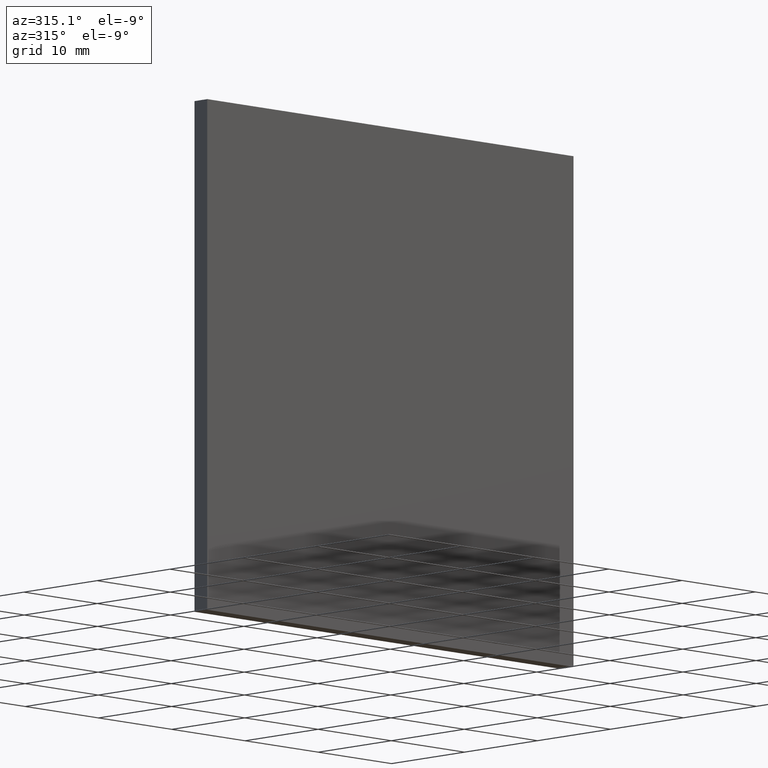
[diagram: clean part render]
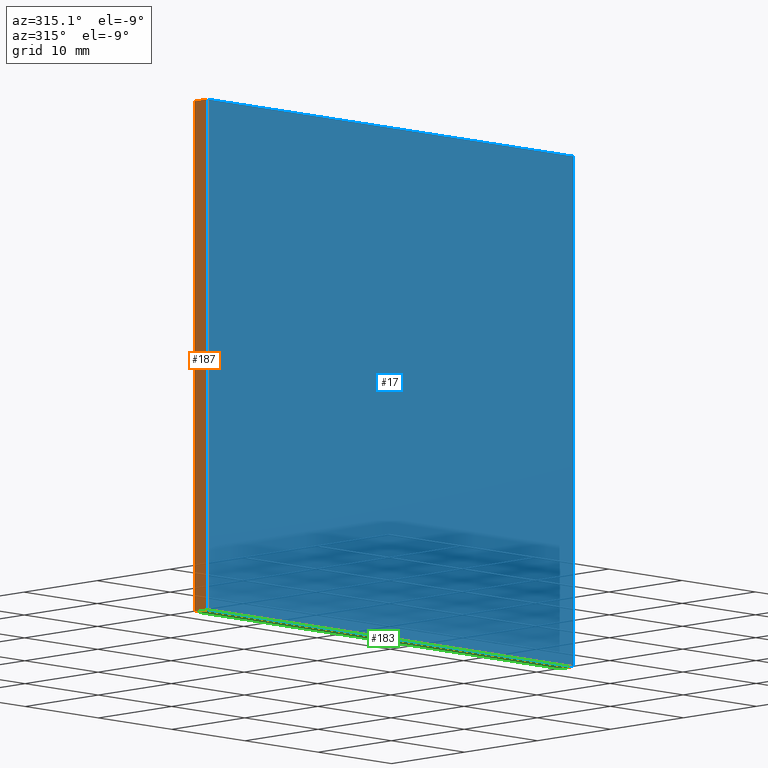
[diagram: same view with three faces highlighted in distinct colors, each labeled with its STEP entity id]
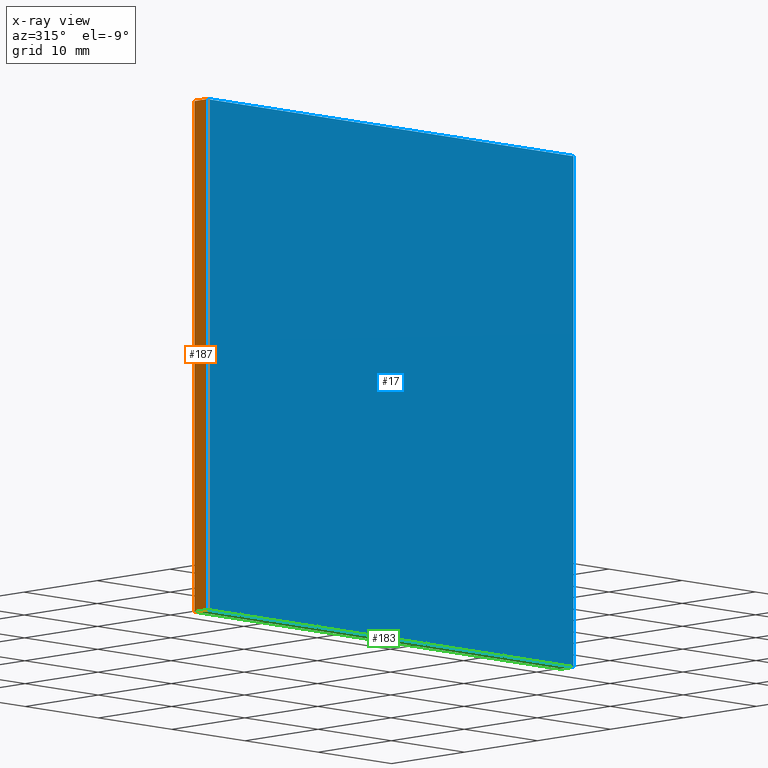
[diagram: x-ray of the same camera — body ghosted, the three highlighted faces saturated]
A machine part, auxiliary view with three faces highlighted in distinct colors.
The next image is the same camera in x-ray (body ghosted, the three faces saturated) — at least one of them is partly hidden behind the body in this view.
Their STEP definitions:

[orange] entity #187 — the highlighted planar face has unit normal (1, -0, 0).
#5 = VERTEX_POINT ( 'NONE', #94 ) ;
#14 = VERTEX_POINT ( 'NONE', #77 ) ;
#15 = VERTEX_POINT ( 'NONE', #136 ) ;
#35 = PLANE ( 'NONE',  #135 ) ;
#40 = DIRECTION ( 'NONE',  ( -0.0000000000000000000, -0.0000000000000000000, 1.000000000000000000 ) ) ;
#43 = ORIENTED_EDGE ( 'NONE', *, *, #120, .T. ) ;
#47 = CARTESIAN_POINT ( 'NONE',  ( -25.00000000000000700, 0.0000000000000000000, 25.00000000000000000 ) ) ;
#61 = FACE_OUTER_BOUND ( 'NONE', #152, .T. ) ;
#70 = ORIENTED_EDGE ( 'NONE', *, *, #93, .F. ) ;
#77 = CARTESIAN_POINT ( 'NONE',  ( -25.00000000000000700, 0.0000000000000000000, -25.00000000000000000 ) ) ;
#78 = ORIENTED_EDGE ( 'NONE', *, *, #124, .T. ) ;
#86 = VERTEX_POINT ( 'NONE', #47 ) ;
#88 = CARTESIAN_POINT ( 'NONE',  ( -25.00000000000000700, 1.740000000000000000, 25.00000000000000000 ) ) ;
#92 = CARTESIAN_POINT ( 'NONE',  ( -25.00000000000000700, 1.740000000000000000, -25.00000000000000000 ) ) ;
#93 = EDGE_CURVE ( 'NONE', #15, #5, #162, .T. ) ;
#94 = CARTESIAN_POINT ( 'NONE',  ( -25.00000000000000700, 1.740000000000000000, 25.00000000000000000 ) ) ;
#97 = DIRECTION ( 'NONE',  ( -0.0000000000000000000, -1.000000000000000000, -0.0000000000000000000 ) ) ;
#101 = ORIENTED_EDGE ( 'NONE', *, *, #104, .F. ) ;
#104 = EDGE_CURVE ( 'NONE', #5, #86, #151, .T. ) ;
#107 = VECTOR ( 'NONE', #97, 1000.000000000000000 ) ;
#108 = CARTESIAN_POINT ( 'NONE',  ( -25.00000000000000700, 1.740000000000000000, 25.00000000000000000 ) ) ;
#110 = DIRECTION ( 'NONE',  ( 1.000000000000000000, -0.0000000000000000000, 0.0000000000000000000 ) ) ;
#117 = CARTESIAN_POINT ( 'NONE',  ( -25.00000000000000700, 0.0000000000000000000, 25.00000000000000000 ) ) ;
#118 = DIRECTION ( 'NONE',  ( 0.0000000000000000000, 0.0000000000000000000, -1.000000000000000000 ) ) ;
#120 = EDGE_CURVE ( 'NONE', #14, #86, #196, .T. ) ;
#124 = EDGE_CURVE ( 'NONE', #15, #14, #137, .T. ) ;
#129 = DIRECTION ( 'NONE',  ( -0.0000000000000000000, -1.000000000000000000, -0.0000000000000000000 ) ) ;
#135 = AXIS2_PLACEMENT_3D ( 'NONE', #88, #110, #118 ) ;
#136 = CARTESIAN_POINT ( 'NONE',  ( -25.00000000000000700, 1.740000000000000000, -25.00000000000000000 ) ) ;
#137 = LINE ( 'NONE', #92, #107 ) ;
#141 = DIRECTION ( 'NONE',  ( -0.0000000000000000000, -0.0000000000000000000, 1.000000000000000000 ) ) ;
#151 = LINE ( 'NONE', #108, #164 ) ;
#152 = EDGE_LOOP ( 'NONE', ( #43, #101, #70, #78 ) ) ;
#156 = VECTOR ( 'NONE', #141, 1000.000000000000000 ) ;
#162 = LINE ( 'NONE', #172, #199 ) ;
#164 = VECTOR ( 'NONE', #129, 1000.000000000000000 ) ;
#172 = CARTESIAN_POINT ( 'NONE',  ( -25.00000000000000700, 1.740000000000000000, 25.00000000000000000 ) ) ;
#187 = ADVANCED_FACE ( 'NONE', ( #61 ), #35, .F. ) ;
#196 = LINE ( 'NONE', #117, #156 ) ;
#199 = VECTOR ( 'NONE', #40, 1000.000000000000000 ) ;

[blue] entity #17 — the highlighted planar face has unit normal (0, -1, 0).
#10 = VECTOR ( 'NONE', #140, 1000.000000000000000 ) ;
#14 = VERTEX_POINT ( 'NONE', #77 ) ;
#17 = ADVANCED_FACE ( 'NONE', ( #143 ), #100, .T. ) ;
#41 = LINE ( 'NONE', #102, #10 ) ;
#42 = EDGE_CURVE ( 'NONE', #81, #14, #41, .T. ) ;
#47 = CARTESIAN_POINT ( 'NONE',  ( -25.00000000000000700, 0.0000000000000000000, 25.00000000000000000 ) ) ;
#62 = ORIENTED_EDGE ( 'NONE', *, *, #42, .F. ) ;
#77 = CARTESIAN_POINT ( 'NONE',  ( -25.00000000000000700, 0.0000000000000000000, -25.00000000000000000 ) ) ;
#80 = EDGE_CURVE ( 'NONE', #86, #185, #126, .T. ) ;
#81 = VERTEX_POINT ( 'NONE', #186 ) ;
#86 = VERTEX_POINT ( 'NONE', #47 ) ;
#100 = PLANE ( 'NONE',  #155 ) ;
#102 = CARTESIAN_POINT ( 'NONE',  ( -25.00000000000000700, 0.0000000000000000000, -25.00000000000000000 ) ) ;
#105 = CARTESIAN_POINT ( 'NONE',  ( 24.99999999999999300, 0.0000000000000000000, 25.00000000000000000 ) ) ;
#111 = EDGE_CURVE ( 'NONE', #185, #81, #190, .T. ) ;
#112 = DIRECTION ( 'NONE',  ( 1.000000000000000000, 0.0000000000000000000, 0.0000000000000000000 ) ) ;
#114 = VECTOR ( 'NONE', #128, 1000.000000000000000 ) ;
#115 = CARTESIAN_POINT ( 'NONE',  ( 0.0000000000000000000, 0.0000000000000000000, 0.0000000000000000000 ) ) ;
#117 = CARTESIAN_POINT ( 'NONE',  ( -25.00000000000000700, 0.0000000000000000000, 25.00000000000000000 ) ) ;
#120 = EDGE_CURVE ( 'NONE', #14, #86, #196, .T. ) ;
#121 = ORIENTED_EDGE ( 'NONE', *, *, #111, .F. ) ;
#126 = LINE ( 'NONE', #127, #168 ) ;
#127 = CARTESIAN_POINT ( 'NONE',  ( -25.00000000000000700, 0.0000000000000000000, 25.00000000000000000 ) ) ;
#128 = DIRECTION ( 'NONE',  ( 0.0000000000000000000, 0.0000000000000000000, -1.000000000000000000 ) ) ;
#130 = ORIENTED_EDGE ( 'NONE', *, *, #80, .F. ) ;
#140 = DIRECTION ( 'NONE',  ( -1.000000000000000000, -0.0000000000000000000, -0.0000000000000000000 ) ) ;
#141 = DIRECTION ( 'NONE',  ( -0.0000000000000000000, -0.0000000000000000000, 1.000000000000000000 ) ) ;
#143 = FACE_OUTER_BOUND ( 'NONE', #158, .T. ) ;
#147 = ORIENTED_EDGE ( 'NONE', *, *, #120, .F. ) ;
#150 = DIRECTION ( 'NONE',  ( 0.0000000000000000000, -1.000000000000000000, 0.0000000000000000000 ) ) ;
#155 = AXIS2_PLACEMENT_3D ( 'NONE', #115, #150, #175 ) ;
#156 = VECTOR ( 'NONE', #141, 1000.000000000000000 ) ;
#158 = EDGE_LOOP ( 'NONE', ( #121, #130, #147, #62 ) ) ;
#168 = VECTOR ( 'NONE', #112, 1000.000000000000000 ) ;
#175 = DIRECTION ( 'NONE',  ( 0.0000000000000000000, -0.0000000000000000000, -1.000000000000000000 ) ) ;
#185 = VERTEX_POINT ( 'NONE', #105 ) ;
#186 = CARTESIAN_POINT ( 'NONE',  ( 24.99999999999999300, 0.0000000000000000000, -25.00000000000000000 ) ) ;
#189 = CARTESIAN_POINT ( 'NONE',  ( 24.99999999999999300, 0.0000000000000000000, 25.00000000000000000 ) ) ;
#190 = LINE ( 'NONE', #189, #114 ) ;
#196 = LINE ( 'NONE', #117, #156 ) ;

[green] entity #183 — the highlighted planar face has unit normal (0, 0, 1).
#3 = LINE ( 'NONE', #182, #83 ) ;
#4 = CARTESIAN_POINT ( 'NONE',  ( -25.00000000000000700, 1.740000000000000000, -25.00000000000000000 ) ) ;
#9 = DIRECTION ( 'NONE',  ( 0.0000000000000000000, 0.0000000000000000000, 1.000000000000000000 ) ) ;
#10 = VECTOR ( 'NONE', #140, 1000.000000000000000 ) ;
#14 = VERTEX_POINT ( 'NONE', #77 ) ;
#15 = VERTEX_POINT ( 'NONE', #136 ) ;
#32 = EDGE_CURVE ( 'NONE', #197, #15, #44, .T. ) ;
#39 = CARTESIAN_POINT ( 'NONE',  ( 24.99999999999999300, 1.740000000000000000, -25.00000000000000000 ) ) ;
#41 = LINE ( 'NONE', #102, #10 ) ;
#42 = EDGE_CURVE ( 'NONE', #81, #14, #41, .T. ) ;
#44 = LINE ( 'NONE', #4, #178 ) ;
#48 = AXIS2_PLACEMENT_3D ( 'NONE', #58, #9, #51 ) ;
#51 = DIRECTION ( 'NONE',  ( 1.000000000000000000, 0.0000000000000000000, -0.0000000000000000000 ) ) ;
#55 = ORIENTED_EDGE ( 'NONE', *, *, #124, .F. ) ;
#56 = PLANE ( 'NONE',  #48 ) ;
#57 = EDGE_CURVE ( 'NONE', #197, #81, #3, .T. ) ;
#58 = CARTESIAN_POINT ( 'NONE',  ( -25.00000000000000700, 1.740000000000000000, -25.00000000000000000 ) ) ;
#60 = ORIENTED_EDGE ( 'NONE', *, *, #32, .F. ) ;
#63 = DIRECTION ( 'NONE',  ( -1.000000000000000000, -0.0000000000000000000, -0.0000000000000000000 ) ) ;
#77 = CARTESIAN_POINT ( 'NONE',  ( -25.00000000000000700, 0.0000000000000000000, -25.00000000000000000 ) ) ;
#81 = VERTEX_POINT ( 'NONE', #186 ) ;
#83 = VECTOR ( 'NONE', #154, 1000.000000000000000 ) ;
#92 = CARTESIAN_POINT ( 'NONE',  ( -25.00000000000000700, 1.740000000000000000, -25.00000000000000000 ) ) ;
#97 = DIRECTION ( 'NONE',  ( -0.0000000000000000000, -1.000000000000000000, -0.0000000000000000000 ) ) ;
#102 = CARTESIAN_POINT ( 'NONE',  ( -25.00000000000000700, 0.0000000000000000000, -25.00000000000000000 ) ) ;
#107 = VECTOR ( 'NONE', #97, 1000.000000000000000 ) ;
#124 = EDGE_CURVE ( 'NONE', #15, #14, #137, .T. ) ;
#136 = CARTESIAN_POINT ( 'NONE',  ( -25.00000000000000700, 1.740000000000000000, -25.00000000000000000 ) ) ;
#137 = LINE ( 'NONE', #92, #107 ) ;
#140 = DIRECTION ( 'NONE',  ( -1.000000000000000000, -0.0000000000000000000, -0.0000000000000000000 ) ) ;
#154 = DIRECTION ( 'NONE',  ( -0.0000000000000000000, -1.000000000000000000, -0.0000000000000000000 ) ) ;
#161 = ORIENTED_EDGE ( 'NONE', *, *, #57, .T. ) ;
#171 = EDGE_LOOP ( 'NONE', ( #176, #55, #60, #161 ) ) ;
#176 = ORIENTED_EDGE ( 'NONE', *, *, #42, .T. ) ;
#178 = VECTOR ( 'NONE', #63, 1000.000000000000000 ) ;
#179 = FACE_OUTER_BOUND ( 'NONE', #171, .T. ) ;
#182 = CARTESIAN_POINT ( 'NONE',  ( 24.99999999999999300, 1.740000000000000000, -25.00000000000000000 ) ) ;
#183 = ADVANCED_FACE ( 'NONE', ( #179 ), #56, .F. ) ;
#186 = CARTESIAN_POINT ( 'NONE',  ( 24.99999999999999300, 0.0000000000000000000, -25.00000000000000000 ) ) ;
#197 = VERTEX_POINT ( 'NONE', #39 ) ;